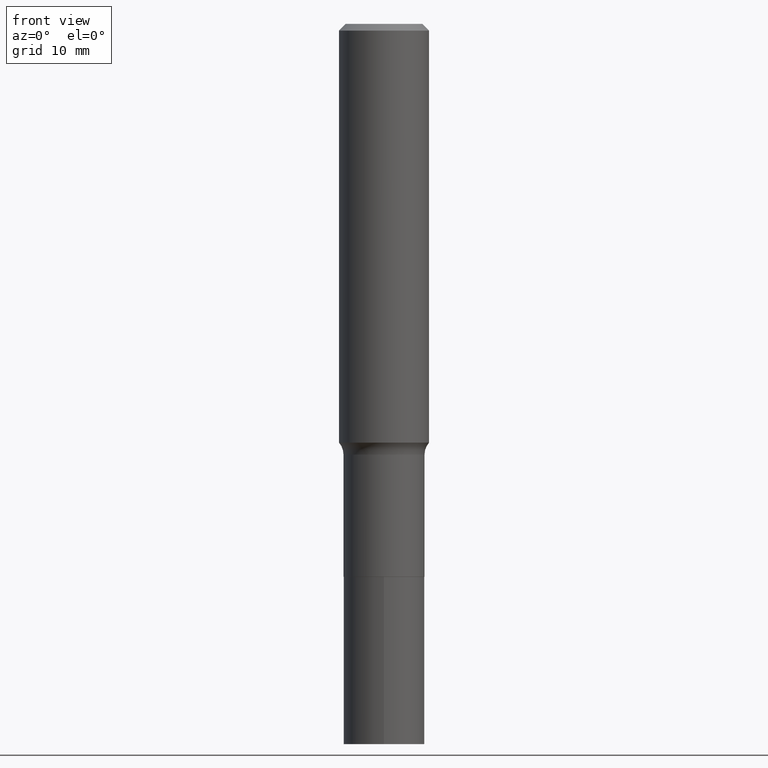
[diagram: clean part render]
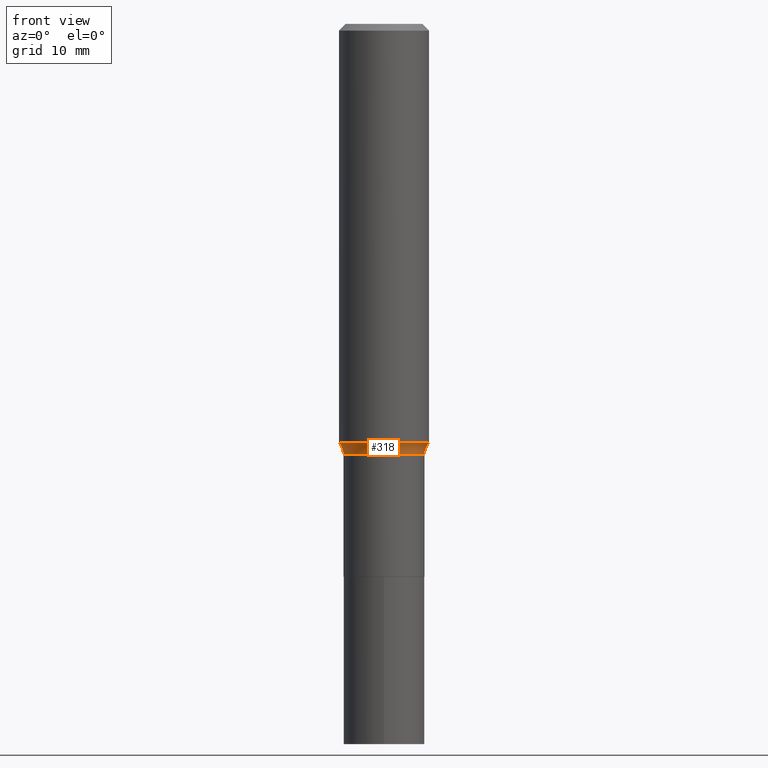
[diagram: same view with one face highlighted and labeled with its STEP entity id]
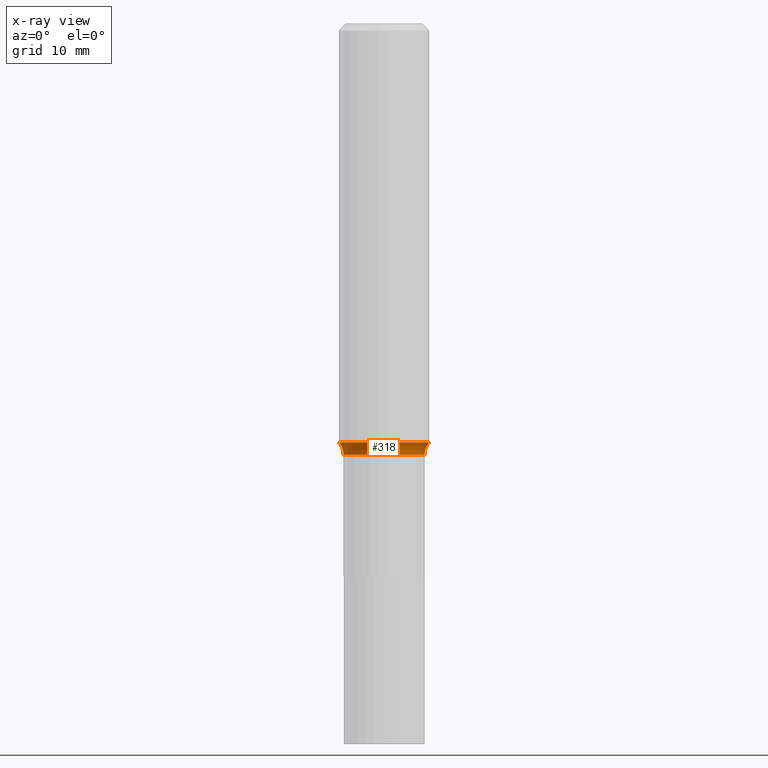
[diagram: x-ray of the same camera — body ghosted, the highlighted face saturated]
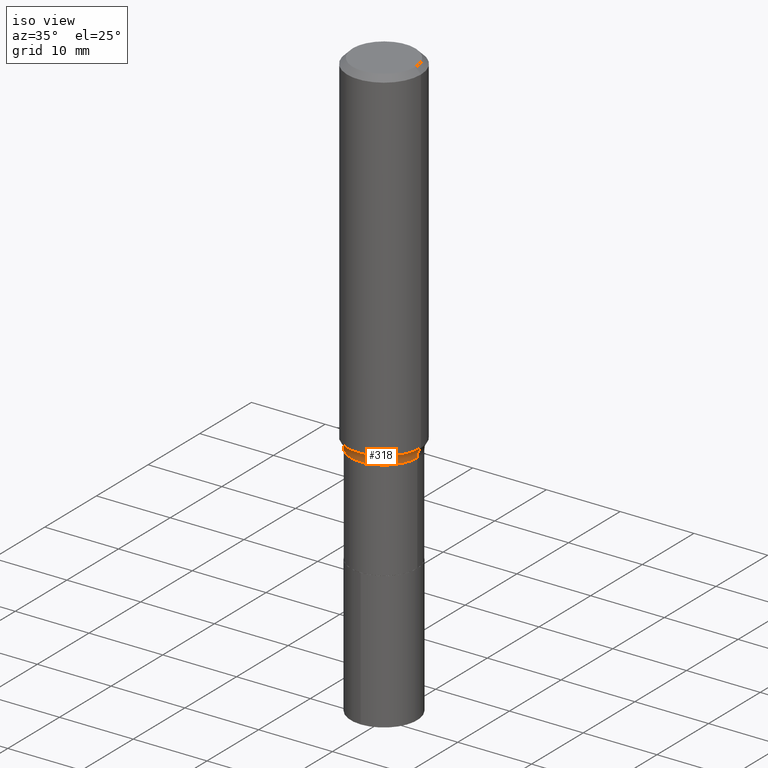
[diagram: same view with one face highlighted and labeled with its STEP entity id]
A machine part, front view. The second image highlights one B-rep face of the part: STEP entity #318.
The next image is the same camera in x-ray: the body ghosted, the highlighted face saturated — about 0% of this face is hidden behind the body in this view.
A second angle (iso view) of the same face is appended — the face is thin or edge-on in the first view.
In plain terms, the highlighted toroidal blend (fillet) surface has major radius 6.5316 mm and minor (blend) radius 2.032 mm.
Its self-contained STEP definition (entity closure, byte-faithful):
#15 = DIRECTION ( 'NONE',  ( 1.000000000000000000, -6.982962677686266711E-15, 0.000000000000000000 ) ) ;
#45 = EDGE_CURVE ( 'NONE', #216, #111, #281, .T. ) ;
#47 = EDGE_CURVE ( 'NONE', #116, #111, #222, .T. ) ;
#62 = AXIS2_PLACEMENT_3D ( 'NONE', #335, #413, #91 ) ;
#69 = CIRCLE ( 'NONE', #294, 0.1968500000000001915 ) ;
#84 = DIRECTION ( 'NONE',  ( 7.105427357601001859E-15, 1.000000000000000000, -3.491481338843145583E-15 ) ) ;
#91 = DIRECTION ( 'NONE',  ( 1.000000000000000000, -6.982962677686268288E-15, 0.000000000000000000 ) ) ;
#98 = DIRECTION ( 'NONE',  ( -2.445468806185136597E-29, 3.491481338843145583E-15, 1.000000000000000000 ) ) ;
#101 = DIRECTION ( 'NONE',  ( 1.000000000000000000, -6.982962677686265922E-15, 4.883557194083112901E-29 ) ) ;
#106 = FACE_OUTER_BOUND ( 'NONE', #215, .T. ) ;
#111 = VERTEX_POINT ( 'NONE', #157 ) ;
#116 = VERTEX_POINT ( 'NONE', #292 ) ;
#118 = EDGE_CURVE ( 'NONE', #330, #116, #453, .T. ) ;
#120 = ORIENTED_EDGE ( 'NONE', *, *, #45, .F. ) ;
#129 = AXIS2_PLACEMENT_3D ( 'NONE', #414, #347, #415 ) ;
#149 = ORIENTED_EDGE ( 'NONE', *, *, #118, .T. ) ;
#157 = CARTESIAN_POINT ( 'NONE',  ( 0.1771499999999999742, -7.813236940063187450E-15, -1.883500000000000174 ) ) ;
#161 = CARTESIAN_POINT ( 'NONE',  ( 0.1968500000000001915, -7.767243999372021400E-15, -1.830927098234927053 ) ) ;
#182 = TOROIDAL_SURFACE ( 'NONE', #441, 0.2571499999999999342, 0.07999999999999998779 ) ;
#215 = EDGE_LOOP ( 'NONE', ( #436, #149, #249, #120 ) ) ;
#216 = VERTEX_POINT ( 'NONE', #161 ) ;
#222 = CIRCLE ( 'NONE', #62, 0.1771499999999999742 ) ;
#249 = ORIENTED_EDGE ( 'NONE', *, *, #47, .T. ) ;
#268 = AXIS2_PLACEMENT_3D ( 'NONE', #333, #84, #328 ) ;
#271 = EDGE_CURVE ( 'NONE', #330, #216, #69, .T. ) ;
#275 = CARTESIAN_POINT ( 'NONE',  ( 4.477475105132583677E-29, -6.392647796269479003E-15, -1.830927098234927053 ) ) ;
#281 = CIRCLE ( 'NONE', #129, 0.07999999999999996003 ) ;
#282 = CARTESIAN_POINT ( 'NONE',  ( -0.1968500000000001915, -4.993944420925722004E-15, -1.830927098234927053 ) ) ;
#292 = CARTESIAN_POINT ( 'NONE',  ( -0.1771499999999999742, -6.249005866515399536E-15, -1.883500000000000174 ) ) ;
#294 = AXIS2_PLACEMENT_3D ( 'NONE', #275, #98, #15 ) ;
#318 = ADVANCED_FACE ( 'NONE', ( #106 ), #182, .F. ) ;
#328 = DIRECTION ( 'NONE',  ( -1.000000000000000000, 7.105427357601001859E-15, 0.000000000000000000 ) ) ;
#330 = VERTEX_POINT ( 'NONE', #282 ) ;
#333 = CARTESIAN_POINT ( 'NONE',  ( -0.2571499999999999342, -4.749044456703968291E-15, -1.883500000000000174 ) ) ;
#335 = CARTESIAN_POINT ( 'NONE',  ( 4.606040496449705381E-29, -6.576205101711065057E-15, -1.883500000000000174 ) ) ;
#347 = DIRECTION ( 'NONE',  ( -6.982962677686266711E-15, -1.000000000000000000, 3.491481338843145583E-15 ) ) ;
#389 = CARTESIAN_POINT ( 'NONE',  ( 4.606040496449705381E-29, -6.576205101711065057E-15, -1.883500000000000174 ) ) ;
#413 = DIRECTION ( 'NONE',  ( -2.445468806185136597E-29, 3.491481338843145583E-15, 1.000000000000000000 ) ) ;
#414 = CARTESIAN_POINT ( 'NONE',  ( 0.2571499999999999342, -8.371873954278089103E-15, -1.883500000000000174 ) ) ;
#415 = DIRECTION ( 'NONE',  ( 1.000000000000000000, -6.982962677686262766E-15, 0.000000000000000000 ) ) ;
#421 = DIRECTION ( 'NONE',  ( -2.445468806185136597E-29, 3.491481338843145583E-15, 1.000000000000000000 ) ) ;
#436 = ORIENTED_EDGE ( 'NONE', *, *, #271, .F. ) ;
#441 = AXIS2_PLACEMENT_3D ( 'NONE', #389, #421, #101 ) ;
#453 = CIRCLE ( 'NONE', #268, 0.07999999999999996003 ) ;